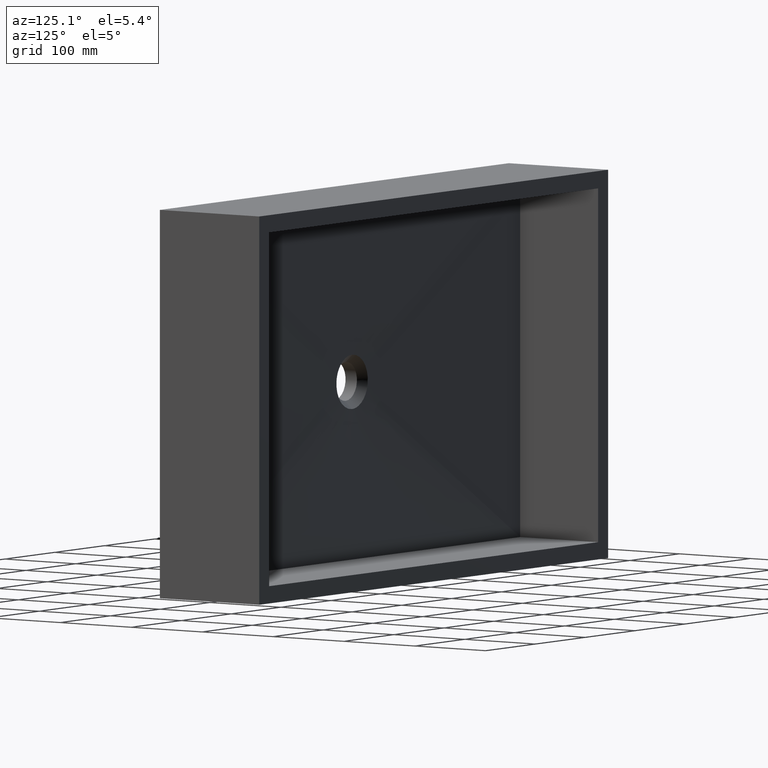
[diagram: clean part render]
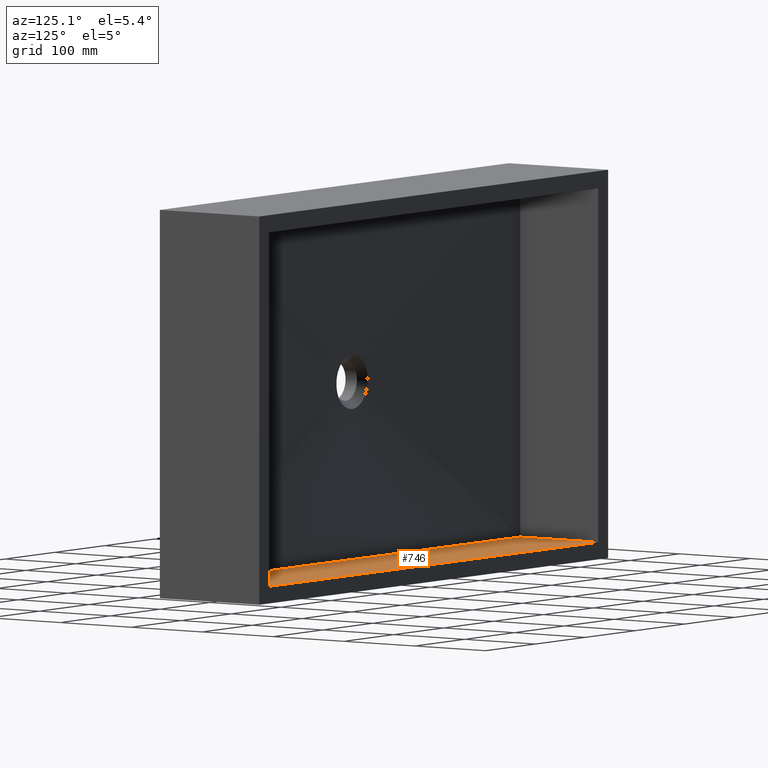
[diagram: same view with one face highlighted and labeled with its STEP entity id]
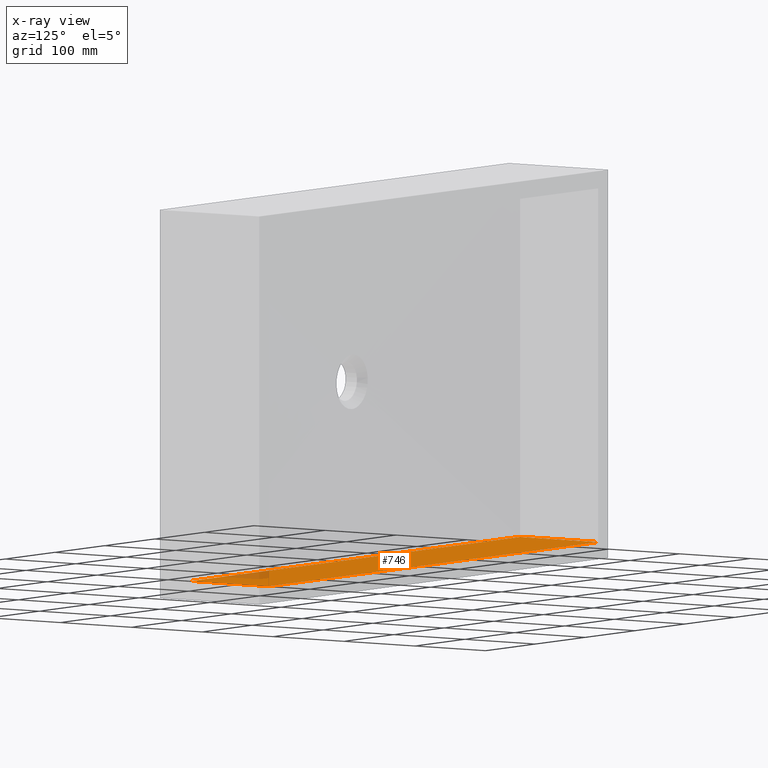
[diagram: x-ray of the same camera — body ghosted, the highlighted face saturated]
A machine part, auxiliary view. The second image highlights one B-rep face of the part: STEP entity #746.
The next image is the same camera in x-ray: the body ghosted, the highlighted face saturated — about 4% of this face is hidden behind the body in this view.
In plain terms, the highlighted planar face has unit normal (-0, 0, -1).
Its self-contained STEP definition (entity closure, byte-faithful):
#15 = VERTEX_POINT ( 'NONE', #308 ) ;
#48 = CARTESIAN_POINT ( 'NONE',  ( 679.9999999999998900, 30.00000000000002800, -430.0000000000000000 ) ) ;
#91 = ORIENTED_EDGE ( 'NONE', *, *, #419, .F. ) ;
#173 = VECTOR ( 'NONE', #188, 1000.000000000000000 ) ;
#176 = CARTESIAN_POINT ( 'NONE',  ( 679.9999999999998900, -776.9813382572325500, -430.0000000000000000 ) ) ;
#188 = DIRECTION ( 'NONE',  ( 1.000000000000000000, -0.0000000000000000000, -0.0000000000000000000 ) ) ;
#210 = LINE ( 'NONE', #503, #266 ) ;
#212 = CARTESIAN_POINT ( 'NONE',  ( 679.9999999999998900, 140.0000000000000000, -430.0000000000000000 ) ) ;
#240 = DIRECTION ( 'NONE',  ( -0.0000000000000000000, 1.000000000000000000, -0.0000000000000000000 ) ) ;
#263 = VERTEX_POINT ( 'NONE', #48 ) ;
#266 = VECTOR ( 'NONE', #310, 1000.000000000000000 ) ;
#298 = VECTOR ( 'NONE', #240, 1000.000000000000000 ) ;
#308 = CARTESIAN_POINT ( 'NONE',  ( 20.00000000000001800, 30.00000000000002800, -430.0000000000000000 ) ) ;
#310 = DIRECTION ( 'NONE',  ( -1.000000000000000000, 0.0000000000000000000, 0.0000000000000000000 ) ) ;
#316 = FACE_OUTER_BOUND ( 'NONE', #1210, .T. ) ;
#318 = LINE ( 'NONE', #509, #1101 ) ;
#419 = EDGE_CURVE ( 'NONE', #15, #1196, #318, .T. ) ;
#436 = CARTESIAN_POINT ( 'NONE',  ( 350.0000000000008500, 30.00000000000000000, -429.9999999999999400 ) ) ;
#470 = PLANE ( 'NONE',  #732 ) ;
#486 = EDGE_CURVE ( 'NONE', #263, #1111, #874, .T. ) ;
#503 = CARTESIAN_POINT ( 'NONE',  ( 679.9999999999998900, 140.0000000000000000, -430.0000000000000000 ) ) ;
#509 = CARTESIAN_POINT ( 'NONE',  ( 20.00000000000000000, -776.9813382572325500, -430.0000000000000000 ) ) ;
#564 = DIRECTION ( 'NONE',  ( -1.000000000000000000, 0.0000000000000000000, 0.0000000000000000000 ) ) ;
#567 = DIRECTION ( 'NONE',  ( -0.0000000000000000000, 0.0000000000000000000, -1.000000000000000000 ) ) ;
#612 = CARTESIAN_POINT ( 'NONE',  ( 20.00000000000000000, 140.0000000000000000, -430.0000000000000000 ) ) ;
#732 = AXIS2_PLACEMENT_3D ( 'NONE', #1188, #567, #564 ) ;
#746 = ADVANCED_FACE ( 'NONE', ( #316 ), #470, .F. ) ;
#787 = ORIENTED_EDGE ( 'NONE', *, *, #486, .T. ) ;
#874 = LINE ( 'NONE', #176, #298 ) ;
#936 = EDGE_CURVE ( 'NONE', #15, #263, #1164, .T. ) ;
#1006 = ORIENTED_EDGE ( 'NONE', *, *, #1058, .T. ) ;
#1058 = EDGE_CURVE ( 'NONE', #1111, #1196, #210, .T. ) ;
#1096 = DIRECTION ( 'NONE',  ( -0.0000000000000000000, 1.000000000000000000, -0.0000000000000000000 ) ) ;
#1101 = VECTOR ( 'NONE', #1096, 1000.000000000000000 ) ;
#1111 = VERTEX_POINT ( 'NONE', #212 ) ;
#1164 = LINE ( 'NONE', #436, #173 ) ;
#1188 = CARTESIAN_POINT ( 'NONE',  ( 679.9999999999998900, -776.9813382572325500, -430.0000000000000000 ) ) ;
#1196 = VERTEX_POINT ( 'NONE', #612 ) ;
#1210 = EDGE_LOOP ( 'NONE', ( #1242, #787, #1006, #91 ) ) ;
#1242 = ORIENTED_EDGE ( 'NONE', *, *, #936, .T. ) ;